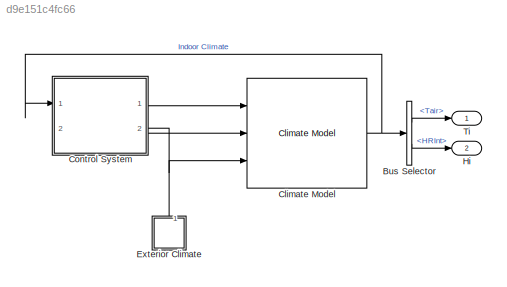
MODEL slx_d9e151c4fc66
KIND model
CONFIG AbsTol = auto
CONFIG EnableMultiTasking = off
CONFIG FixedStep = auto
CONFIG MaxStep = auto
CONFIG MinStep = auto
CONFIG RelTol = 1e-3
CONFIG SampleTimeConstraint = Unconstrained
CONFIG SolverName = VariableStepAuto
CONFIG StartTime = 0.0
CONFIG StopTime = tspan(end)
BLOCK [BusSelector] Bus Selector
  OutputSignals = Temp.Tair,Gas.HRInt
  Ports = [1, 2]
BLOCK [Reference] Climate Model  REF=HORTISIM/Climate/Models/Climate Model
  Ports = [3, 1]
  SourceBlock = HORTISIM/Climate/Models/Climate Model
  SourceProductName = Horti Simulator
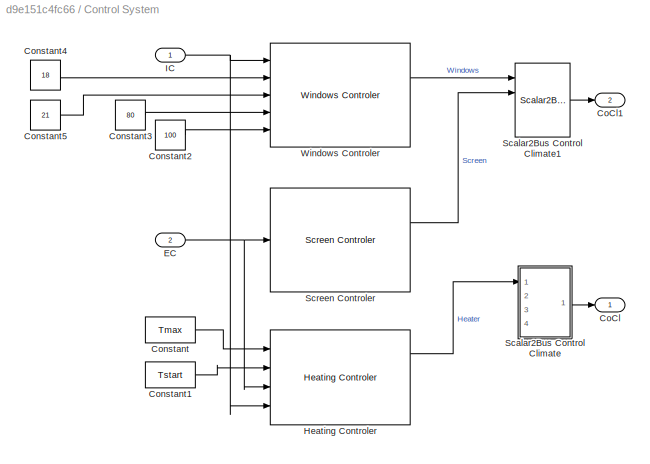
BLOCK [SubSystem] Control System
  NameLocation = top
  PortSchema = {"entries":[{"content":{"sides":[{"content":{"connectorIds":["In1"]},"type":"ConnectorPlacement.EquallySpacedRectSide","uuid":"7d0146e2-a53b-49ab-a7f4-04cd7ef00b9a"},{"content":{"connectorIds":["Out1","Out2"],"side":"RIGHT"},"type":"ConnectorPlacement.EquallySpacedRectSide","uuid":"fee587e2-4b5c-4140-8904-07609d427593"},{"content":{"connectorIds":[],"side":"TOP"},"type":"ConnectorPlacement.Equally...<+396ch>
  Ports = [2, 2]
  RequestExecContextInheritance = off
BLOCK [Outport] Control System/CoCl
BLOCK [Outport] Control System/CoCl1
  Port = 2
BLOCK [Constant] Control System/Constant
  Value = Tmax
BLOCK [Constant] Control System/Constant1
  Value = Tstart
BLOCK [Constant] Control System/Constant2
  Value = 100
BLOCK [Constant] Control System/Constant3
  Value = 80
BLOCK [Constant] Control System/Constant4
  Value = 18
BLOCK [Constant] Control System/Constant5
  Value = 21
BLOCK [Inport] Control System/EC
  Port = 2
BLOCK [Reference] Control System/Heating Controler  REF=HORTISIM/Climate/Controls/Heating Controler
  NameLocation = top
  Ports = [4, 3]
  SourceBlock = HORTISIM/Climate/Controls/Heating Controler
  SourceProductName = Horti Simulator
BLOCK [Inport] Control System/IC
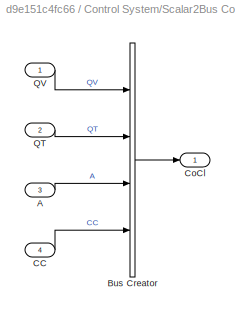
BLOCK [SubSystem] Control System/Scalar2Bus Control Climate
  Ports = [4, 1]
  RequestExecContextInheritance = off
BLOCK [Inport] Control System/Scalar2Bus Control Climate/A
  Port = 3
BLOCK [BusCreator] Control System/Scalar2Bus Control Climate/Bus Creator
  DisplayOption = bar
  InheritFromInputs = on
  Inputs = 4
  Ports = [4, 1]
BLOCK [Inport] Control System/Scalar2Bus Control Climate/CC
  Port = 4
BLOCK [Outport] Control System/Scalar2Bus Control Climate/CoCl
BLOCK [Inport] Control System/Scalar2Bus Control Climate/QT
  Port = 2
BLOCK [Inport] Control System/Scalar2Bus Control Climate/QV
BLOCK [Reference] Control System/Scalar2Bus Control Climate1  REF=HORTISIM/Other 
Functions/Scalar2Bus 
Control Climate
  Ports = [4, 1]
  SourceBlock = HORTISIM/Other \nFunctions/Scalar2Bus \nControl Climate
  SourceProductName = Horti Simulator
  SourceType = SubSystem
BLOCK [Reference] Control System/Screen Controler  REF=HORTISIM/Climate/Controls/Screen Controler
  NameLocation = top
  Ports = [1, 2]
  SourceBlock = HORTISIM/Climate/Controls/Screen Controler
  SourceProductName = Horti Simulator
BLOCK [Reference] Control System/Windows Controler  REF=HORTISIM/Climate/Controls/Windows Controler
  NameLocation = top
  Ports = [5, 2]
  SourceBlock = HORTISIM/Climate/Controls/Windows Controler
  SourceProductName = Horti Simulator
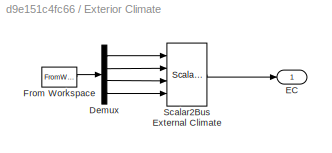
BLOCK [SubSystem] Exterior Climate
  Ports = [0, 1]
  RequestExecContextInheritance = off
BLOCK [Demux] Exterior Climate/Demux
  Ports = [1, 4]
BLOCK [Outport] Exterior Climate/EC
BLOCK [FromWorkspace] Exterior Climate/From Workspace
  VariableName = EC
BLOCK [Reference] Exterior Climate/Scalar2Bus External Climate  REF=HORTISIM/Other 
Functions/Scalar2Bus
External Climate
  Ports = [4, 1]
  SourceBlock = HORTISIM/Other \nFunctions/Scalar2Bus\nExternal Climate
  SourceProductName = Horti Simulator
  SourceType = SubSystem
BLOCK [Outport] Hi
  Port = 2
BLOCK [Outport] Ti
LINE Bus Selector:1 -> Ti:1
LINE Bus Selector:2 -> Hi:1
NET Climate Model:1 -> Bus Selector:1, Control System:1
LINE Control System/Constant1:1 -> Control System/Heating Controler:2
LINE Control System/Constant2:1 -> Control System/Windows Controler:5
LINE Control System/Constant3:1 -> Control System/Windows Controler:4
LINE Control System/Constant4:1 -> Control System/Windows Controler:2
LINE Control System/Constant5:1 -> Control System/Windows Controler:3
LINE Control System/Constant:1 -> Control System/Heating Controler:1
NET Control System/EC:1 -> Control System/Heating Controler:3, Control System/Screen Controler:1
LINE Control System/Heating Controler:1 -> Control System/Scalar2Bus Control Climate:1
NET Control System/IC:1 -> Control System/Heating Controler:4, Control System/Windows Controler:1
LINE Control System/Scalar2Bus Control Climate/A:1 -> Control System/Scalar2Bus Control Climate/Bus Creator:3
LINE Control System/Scalar2Bus Control Climate/Bus Creator:1 -> Control System/Scalar2Bus Control Climate/CoCl:1
LINE Control System/Scalar2Bus Control Climate/CC:1 -> Control System/Scalar2Bus Control Climate/Bus Creator:4
LINE Control System/Scalar2Bus Control Climate/QT:1 -> Control System/Scalar2Bus Control Climate/Bus Creator:2
LINE Control System/Scalar2Bus Control Climate/QV:1 -> Control System/Scalar2Bus Control Climate/Bus Creator:1
LINE Control System/Scalar2Bus Control Climate1:1 -> Control System/CoCl1:1
LINE Control System/Scalar2Bus Control Climate:1 -> Control System/CoCl:1
LINE Control System/Screen Controler:1 -> Control System/Scalar2Bus Control Climate1:2
LINE Control System/Windows Controler:1 -> Control System/Scalar2Bus Control Climate1:1
LINE Control System:1 -> Climate Model:1
LINE Control System:2 -> Climate Model:2
LINE Exterior Climate/Demux:1 -> Exterior Climate/Scalar2Bus External Climate:1
LINE Exterior Climate/Demux:2 -> Exterior Climate/Scalar2Bus External Climate:2
LINE Exterior Climate/Demux:3 -> Exterior Climate/Scalar2Bus External Climate:3
LINE Exterior Climate/Demux:4 -> Exterior Climate/Scalar2Bus External Climate:4
LINE Exterior Climate/From Workspace:1 -> Exterior Climate/Demux:1
LINE Exterior Climate/Scalar2Bus External Climate:1 -> Exterior Climate/EC:1
NET Exterior Climate:1 -> Climate Model:3, Control System:2
note: NET lines group one-source signal fan-out (src -> all destinations, sorted); 1:1 wires keep LINE
